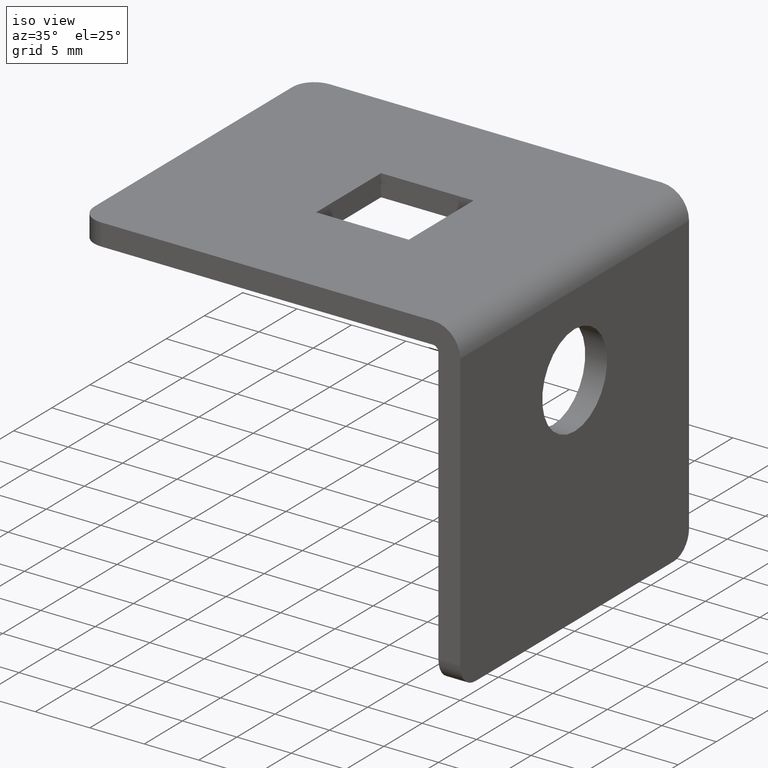
[diagram: clean part render]
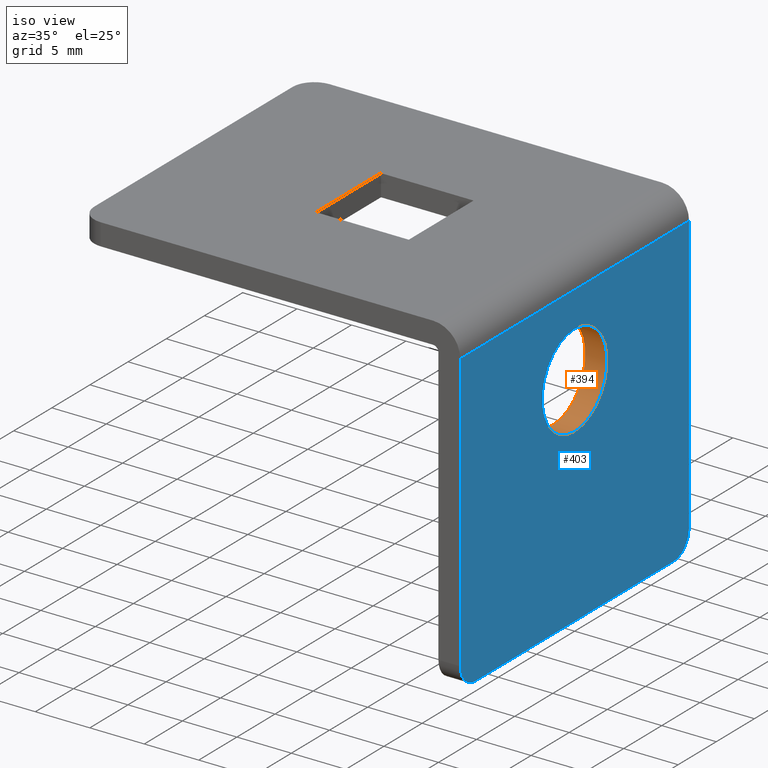
[diagram: same view with the hole feature highlighted: cylindrical wall and planar end face, labeled with their STEP entity ids]
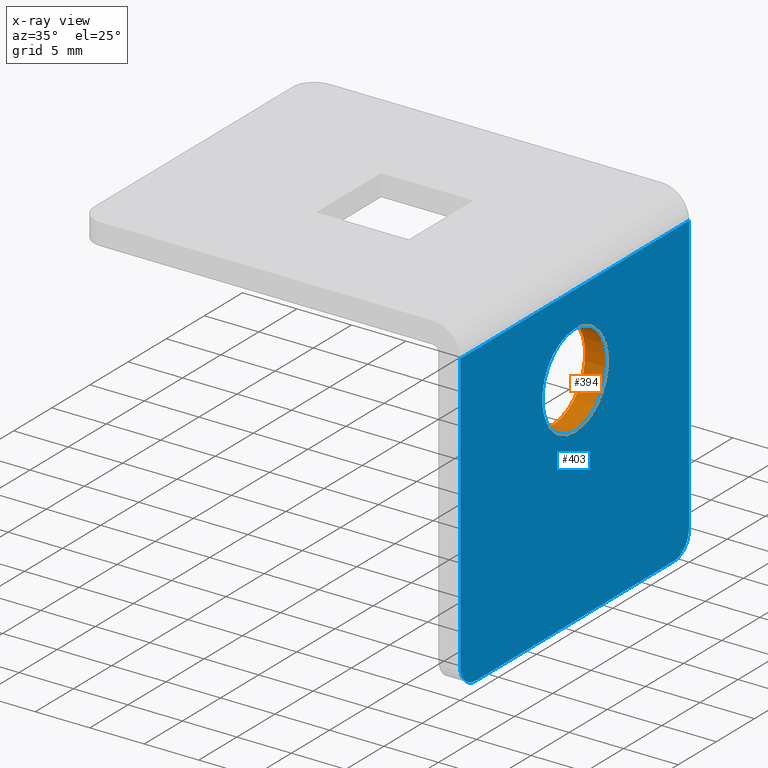
[diagram: x-ray of the same camera — body ghosted, the hole faces saturated]
A machine part, iso view. The highlighted faces form one hole feature of diameter 8.5 mm: the cylindrical wall (entity #394, orange) and its adjacent planar end face (entity #403, blue) — they share a circular edge in the B-rep.
The next image is the same camera in x-ray (body ghosted, the hole faces saturated) — the bore reads through the body.
Wall:
#17=FACE_BOUND('',#72,.T.);
#46=FACE_OUTER_BOUND('',#71,.T.);
#71=EDGE_LOOP('',(#318));
#72=EDGE_LOOP('',(#319));
#170=CIRCLE('',#415,4.25);
#176=CIRCLE('',#429,4.25);
#190=VERTEX_POINT('',#586);
#209=VERTEX_POINT('',#638);
#226=EDGE_CURVE('',#190,#190,#170,.T.);
#251=EDGE_CURVE('',#209,#209,#176,.T.);
#318=ORIENTED_EDGE('',*,*,#251,.F.);
#319=ORIENTED_EDGE('',*,*,#226,.F.);
#381=CYLINDRICAL_SURFACE('',#428,4.25);
#394=ADVANCED_FACE('',(#46,#17),#381,.F.);
#415=AXIS2_PLACEMENT_3D('',#587,#468,#469);
#428=AXIS2_PLACEMENT_3D('',#637,#513,#514);
#429=AXIS2_PLACEMENT_3D('',#639,#515,#516);
#468=DIRECTION('center_axis',(1.,1.74451110989651E-19,-1.71378285013161E-15));
#469=DIRECTION('ref_axis',(1.71378285013161E-15,0.,1.));
#513=DIRECTION('center_axis',(-1.,-1.74451110989651E-19,1.71378285013161E-15));
#514=DIRECTION('ref_axis',(1.71378285013161E-15,0.,1.));
#515=DIRECTION('center_axis',(-1.,1.74451110989651E-19,1.71378285013161E-15));
#516=DIRECTION('ref_axis',(1.71378285013161E-15,0.,1.));
#586=CARTESIAN_POINT('',(33.,15.,-3.75));
#587=CARTESIAN_POINT('Origin',(33.,15.,-8.));
#637=CARTESIAN_POINT('Origin',(88.,15.,-8.00000000000009));
#638=CARTESIAN_POINT('',(35.,15.,-12.25));
#639=CARTESIAN_POINT('Origin',(35.,15.,-8.));
End face:
#18=FACE_BOUND('',#82,.T.);
#33=PLANE('',#442);
#55=FACE_OUTER_BOUND('',#81,.T.);
#81=EDGE_LOOP('',(#352,#353,#354,#355,#356,#357));
#82=EDGE_LOOP('',(#358));
#91=LINE('',#577,#131);
#97=LINE('',#595,#137);
#122=LINE('',#658,#162);
#123=LINE('',#662,#163);
#131=VECTOR('',#460,26.);
#137=VECTOR('',#478,25.5);
#162=VECTOR('',#535,30.);
#163=VECTOR('',#542,25.5);
#167=CIRCLE('',#410,2.);
#171=CIRCLE('',#417,2.);
#176=CIRCLE('',#429,4.25);
#181=VERTEX_POINT('',#564);
#182=VERTEX_POINT('',#565);
#186=VERTEX_POINT('',#575);
#191=VERTEX_POINT('',#589);
#192=VERTEX_POINT('',#593);
#209=VERTEX_POINT('',#638);
#214=VERTEX_POINT('',#657);
#215=EDGE_CURVE('',#181,#182,#167,.T.);
#221=EDGE_CURVE('',#186,#181,#91,.T.);
#227=EDGE_CURVE('',#191,#186,#171,.T.);
#230=EDGE_CURVE('',#192,#191,#97,.T.);
#251=EDGE_CURVE('',#209,#209,#176,.T.);
#260=EDGE_CURVE('',#192,#214,#122,.T.);
#263=EDGE_CURVE('',#182,#214,#123,.T.);
#352=ORIENTED_EDGE('',*,*,#215,.F.);
#353=ORIENTED_EDGE('',*,*,#221,.F.);
#354=ORIENTED_EDGE('',*,*,#227,.F.);
#355=ORIENTED_EDGE('',*,*,#230,.F.);
#356=ORIENTED_EDGE('',*,*,#260,.T.);
#357=ORIENTED_EDGE('',*,*,#263,.F.);
#358=ORIENTED_EDGE('',*,*,#251,.T.);
#403=ADVANCED_FACE('',(#55,#18),#33,.T.);
#410=AXIS2_PLACEMENT_3D('',#566,#450,#451);
#417=AXIS2_PLACEMENT_3D('',#590,#472,#473);
#429=AXIS2_PLACEMENT_3D('',#639,#515,#516);
#442=AXIS2_PLACEMENT_3D('',#668,#552,#553);
#450=DIRECTION('center_axis',(-1.,1.74451110989651E-19,1.71378285013161E-15));
#451=DIRECTION('ref_axis',(0.,-0.707106781186548,-0.707106781186548));
#460=DIRECTION('',(0.,-1.,0.));
#472=DIRECTION('center_axis',(-1.,1.74451110989651E-19,1.71378285013161E-15));
#473=DIRECTION('ref_axis',(0.,0.707106781186548,-0.707106781186548));
#478=DIRECTION('',(-1.71512449944288E-15,0.,-1.));
#515=DIRECTION('center_axis',(-1.,1.74451110989651E-19,1.71378285013161E-15));
#516=DIRECTION('ref_axis',(1.71378285013161E-15,0.,1.));
#535=DIRECTION('',(-1.74451110989651E-19,-1.,2.99205374413381E-34));
#542=DIRECTION('',(1.77635683940025E-15,0.,1.));
#552=DIRECTION('center_axis',(1.,-1.74451110989651E-19,-1.71378285013161E-15));
#553=DIRECTION('ref_axis',(-1.4210854715202E-15,0.,-1.));
#564=CARTESIAN_POINT('',(34.9999999999999,2.,-28.));
#565=CARTESIAN_POINT('',(34.9999999999999,0.,-26.));
#566=CARTESIAN_POINT('Origin',(34.9999999999999,2.,-26.));
#575=CARTESIAN_POINT('',(34.9999999999999,28.,-28.));
#577=CARTESIAN_POINT('',(34.9999999999999,30.,-28.));
#589=CARTESIAN_POINT('',(34.9999999999999,30.,-26.));
#590=CARTESIAN_POINT('Origin',(34.9999999999999,28.,-26.));
#593=CARTESIAN_POINT('',(35.,30.,-0.500000000000003));
#595=CARTESIAN_POINT('',(35.,30.,-0.500000000000003));
#638=CARTESIAN_POINT('',(35.,15.,-12.25));
#639=CARTESIAN_POINT('Origin',(35.,15.,-8.));
#657=CARTESIAN_POINT('',(35.,0.,-0.500000000000003));
#658=CARTESIAN_POINT('',(35.,15.,-0.500000000000007));
#662=CARTESIAN_POINT('',(35.,0.,3.5));
#668=CARTESIAN_POINT('Origin',(35.,15.,-13.25));